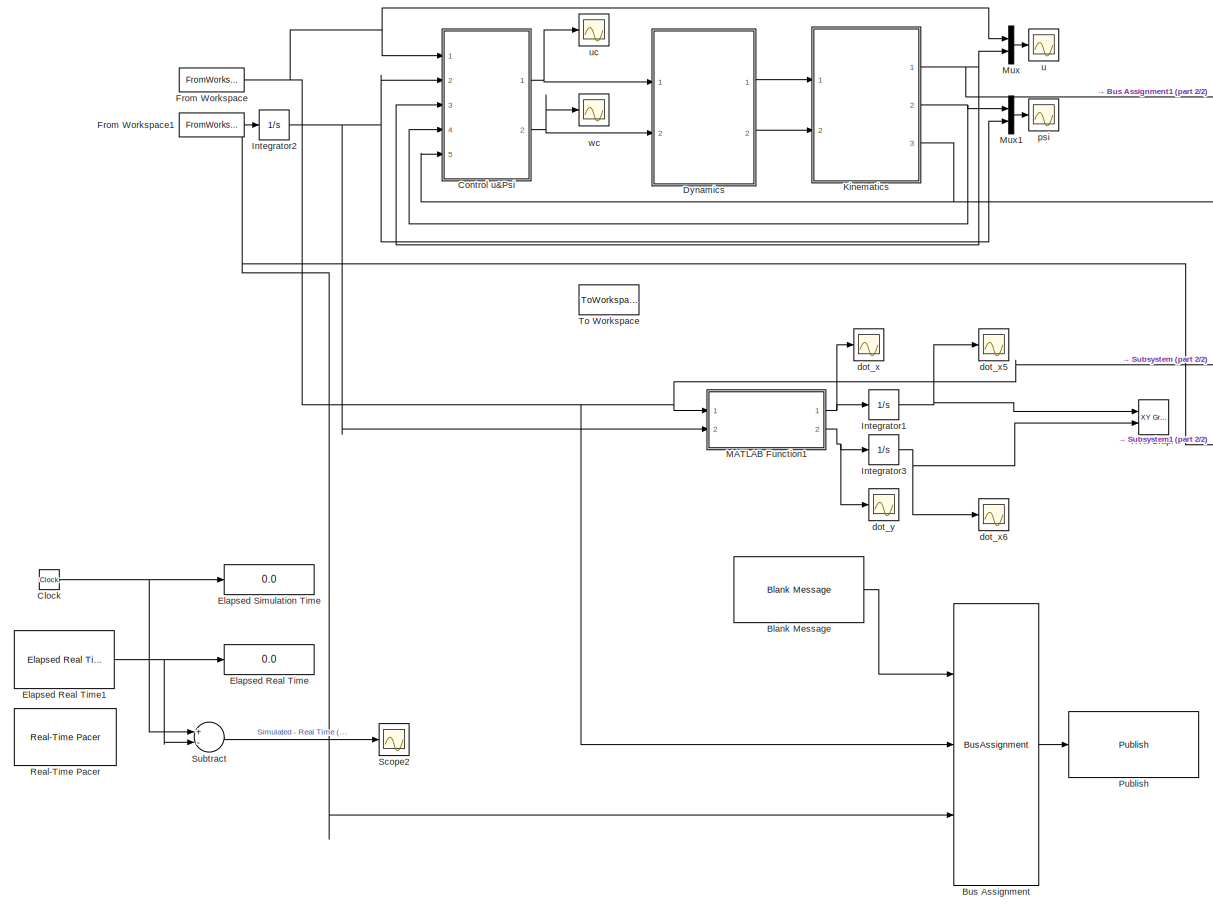
[diagram: root canvas - part 1/2, middle left region]
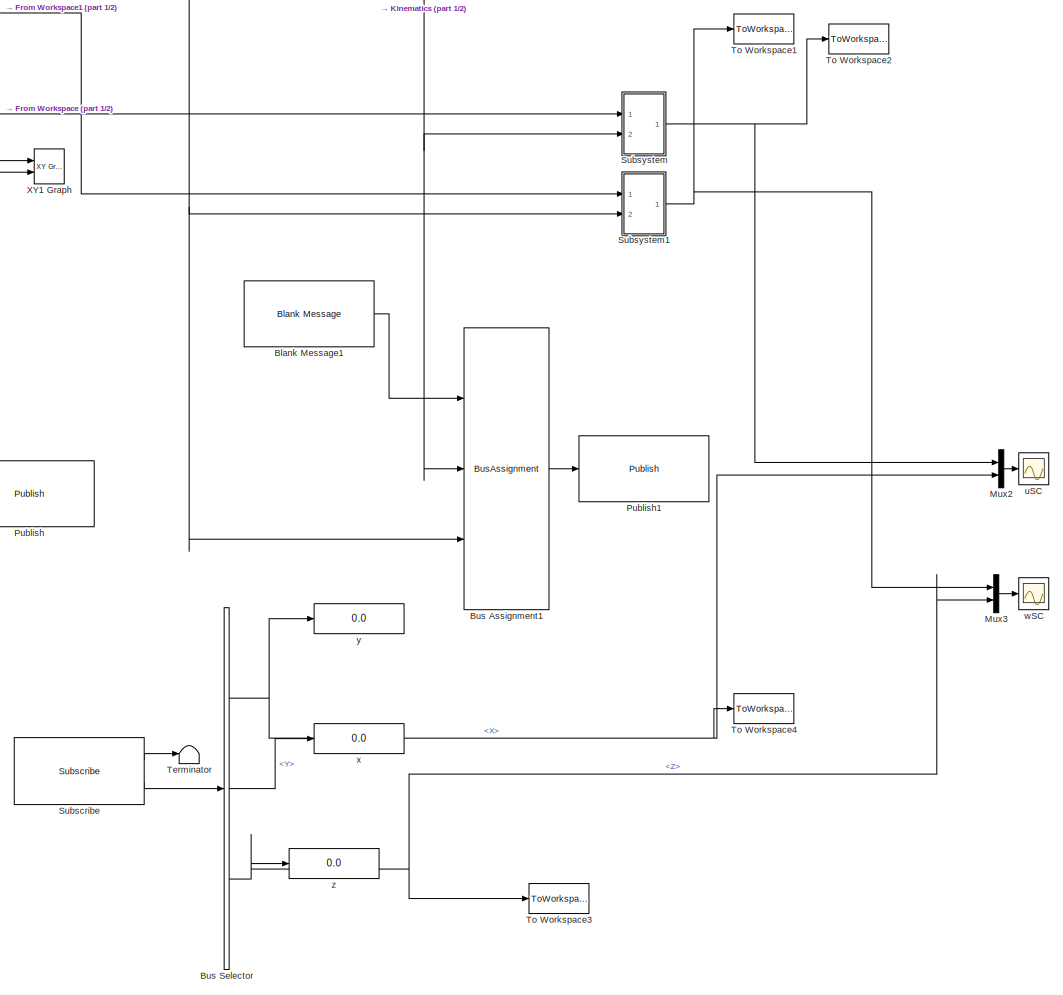
[diagram: root canvas - part 2/2, right side, full height]
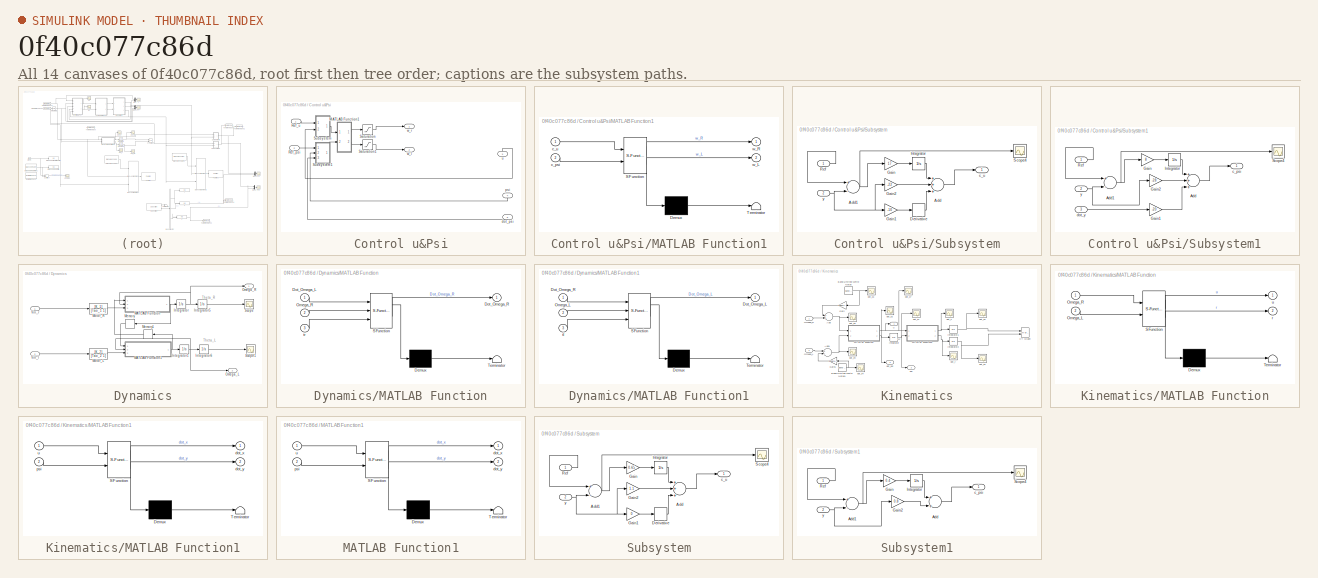
[diagram: thumbnail index - all 14 canvases of the model, root first then tree order]
MODEL slx_0f40c077c86d
KIND model
CONFIG AbsTol = auto
CONFIG EnableMultiTasking = off
CONFIG FixedStep = auto
CONFIG MaxStep = auto
CONFIG MinStep = auto
CONFIG RelTol = 1e-3
CONFIG SampleTimeConstraint = Unconstrained
CONFIG Solver = VariableStepAuto
CONFIG SolverName = VariableStepAuto
CONFIG StartTime = 0.0
CONFIG StopTime = 200
BLOCK [Reference] Blank Message  REF=robotlib/Blank Message
  Ports = [0, 1]
  SourceBlock = robotlib/Blank Message
  SourceProductBaseCode = RO
  SourceProductName = Robotics System Toolbox
  SourceType = ROS Blank Message
BLOCK [Reference] Blank Message1  REF=robotlib/Blank Message
  Ports = [0, 1]
  SourceBlock = robotlib/Blank Message
  SourceProductBaseCode = RO
  SourceProductName = Robotics System Toolbox
  SourceType = ROS Blank Message
BLOCK [BusAssignment] Bus Assignment
  AssignedSignals = Linear.X,Angular.Z
  Ports = [3, 1]
BLOCK [BusAssignment] Bus Assignment1
  AssignedSignals = X,Z
  Ports = [3, 1]
BLOCK [BusSelector] Bus Selector
  OutputAsBus = off
  OutputSignals = X,Y,Z
  Ports = [1, 3]
BLOCK [Clock] Clock
BLOCK [SubSystem] Control u&Psi
  Ports = [5, 2]
  RequestExecContextInheritance = off
BLOCK [SubSystem] Control u&Psi/MATLAB Function1
  ErrorFcn = Stateflow.Translate.translate
  PermitHierarchicalResolution = ExplicitOnly
  Ports = [2, 2]
  RequestExecContextInheritance = off
  SFBlockType = MATLAB Function
  TreatAsAtomicUnit = on
BLOCK [Demux] Control u&Psi/MATLAB Function1/ Demux 
  Outputs = 1
  Ports = [1, 1]
BLOCK [S-Function] Control u&Psi/MATLAB Function1/ SFunction 
  EnableBusSupport = on
  FunctionName = sf_sfun
  PortCounts = [2 3]
  Ports = [2, 3]
  SFcnIsStateOwnerBlock = off
  SFunctionDeploymentMode = off
  Tag = Stateflow S-Function Modelo_Ceres_RetroROS 5
BLOCK [Terminator] Control u&Psi/MATLAB Function1/ Terminator 
BLOCK [Inport] Control u&Psi/MATLAB Function1/c_psi
  IconDisplay = Port number
  Port = 2
BLOCK [Inport] Control u&Psi/MATLAB Function1/c_u
  IconDisplay = Port number
BLOCK [Outport] Control u&Psi/MATLAB Function1/w_L
  IconDisplay = Port number
  Port = 2
BLOCK [Outport] Control u&Psi/MATLAB Function1/w_R
  IconDisplay = Port number
BLOCK [Inport] Control u&Psi/Ref_psi
  IconDisplay = Port number
  Port = 2
BLOCK [Inport] Control u&Psi/Ref_u
  IconDisplay = Port number
BLOCK [Saturate] Control u&Psi/Saturation
  InputPortMap = u0
  LowerLimit = -10
  Ports = [1, 1]
  UpperLimit = 10
BLOCK [Saturate] Control u&Psi/Saturation1
  InputPortMap = u0
  LowerLimit = -10
  Ports = [1, 1]
  UpperLimit = 10
BLOCK [SubSystem] Control u&Psi/Subsystem
  Ports = [2, 1]
  RequestExecContextInheritance = off
BLOCK [Sum] Control u&Psi/Subsystem/Add
  InputSameDT = off
  Inputs = +++
  OutDataTypeStr = Inherit: Inherit via internal rule
  Ports = [3, 1]
  SaturateOnIntegerOverflow = off
BLOCK [Sum] Control u&Psi/Subsystem/Add1
  InputSameDT = off
  Inputs = +-
  OutDataTypeStr = Inherit: Inherit via internal rule
  Ports = [2, 1]
  SaturateOnIntegerOverflow = off
BLOCK [Derivative] Control u&Psi/Subsystem/Derivative
BLOCK [Gain] Control u&Psi/Subsystem/Gain
  Gain = 17
  OutDataTypeStr = Inherit: Inherit via internal rule
  ParamDataTypeStr = Inherit: Inherit via internal rule
  SaturateOnIntegerOverflow = off
BLOCK [Gain] Control u&Psi/Subsystem/Gain1
  Gain = -10
  OutDataTypeStr = Inherit: Inherit via internal rule
  ParamDataTypeStr = Inherit: Inherit via internal rule
  SaturateOnIntegerOverflow = off
BLOCK [Gain] Control u&Psi/Subsystem/Gain2
  Gain = -22
  OutDataTypeStr = Inherit: Inherit via internal rule
  ParamDataTypeStr = Inherit: Inherit via internal rule
  SaturateOnIntegerOverflow = off
BLOCK [Integrator] Control u&Psi/Subsystem/Integrator
  Ports = [1, 1]
BLOCK [Inport] Control u&Psi/Subsystem/Ref
  IconDisplay = Port number
BLOCK [Scope] Control u&Psi/Subsystem/Scope4
  Floating = off
  NumInputPorts = 1
  Ports = [1]
  ScopeSpecificationString = Simulink.scopes.TimeScopeBlockCfg('CurrentConfiguration', extmgr.ConfigurationSet(extmgr.Configuration('Core','General UI',true),extmgr.Configuration('Core','Source UI',true),extmgr.Configuration('Sources','WiredSimulink',true,'DataLoggingVariableName','ScopeData21'),extmgr.Configuration('Visuals','Time Domain',true,'SerializedDisplays',{struct('MinYLimReal','-0.13096','MaxYLimReal','0.56125','YLa...<+1408ch>
BLOCK [Outport] Control u&Psi/Subsystem/c_u
  IconDisplay = Port number
BLOCK [Inport] Control u&Psi/Subsystem/y
  IconDisplay = Port number
  Port = 2
BLOCK [SubSystem] Control u&Psi/Subsystem1
  Ports = [3, 1]
  RequestExecContextInheritance = off
BLOCK [Sum] Control u&Psi/Subsystem1/Add
  InputSameDT = off
  Inputs = +++
  OutDataTypeStr = Inherit: Inherit via internal rule
  Ports = [3, 1]
  SaturateOnIntegerOverflow = off
BLOCK [Sum] Control u&Psi/Subsystem1/Add1
  InputSameDT = off
  Inputs = +-
  OutDataTypeStr = Inherit: Inherit via internal rule
  Ports = [2, 1]
  SaturateOnIntegerOverflow = off
BLOCK [Gain] Control u&Psi/Subsystem1/Gain
  Gain = 8
  OutDataTypeStr = Inherit: Inherit via internal rule
  ParamDataTypeStr = Inherit: Inherit via internal rule
  SaturateOnIntegerOverflow = off
BLOCK [Gain] Control u&Psi/Subsystem1/Gain1
  Gain = -20
  OutDataTypeStr = Inherit: Inherit via internal rule
  ParamDataTypeStr = Inherit: Inherit via internal rule
  SaturateOnIntegerOverflow = off
BLOCK [Gain] Control u&Psi/Subsystem1/Gain2
  Gain = -28
  OutDataTypeStr = Inherit: Inherit via internal rule
  ParamDataTypeStr = Inherit: Inherit via internal rule
  SaturateOnIntegerOverflow = off
BLOCK [Integrator] Control u&Psi/Subsystem1/Integrator
  Ports = [1, 1]
BLOCK [Inport] Control u&Psi/Subsystem1/Ref
  IconDisplay = Port number
BLOCK [Scope] Control u&Psi/Subsystem1/Scope4
  Floating = off
  NumInputPorts = 1
  Ports = [1]
  ScopeSpecificationString = Simulink.scopes.TimeScopeBlockCfg('CurrentConfiguration', extmgr.ConfigurationSet(extmgr.Configuration('Core','General UI',true),extmgr.Configuration('Core','Source UI',true),extmgr.Configuration('Sources','WiredSimulink',true,'DataLoggingVariableName','ScopeData22'),extmgr.Configuration('Visuals','Time Domain',true,'SerializedDisplays',{struct('MinYLimReal','-0.4243','MaxYLimReal','0.41007','YLab...<+1404ch>
BLOCK [Outport] Control u&Psi/Subsystem1/c_psi
  IconDisplay = Port number
BLOCK [Inport] Control u&Psi/Subsystem1/dot_y
  IconDisplay = Port number
  Port = 3
BLOCK [Inport] Control u&Psi/Subsystem1/y
  IconDisplay = Port number
  Port = 2
BLOCK [Inport] Control u&Psi/dot_psi
  IconDisplay = Port number
  Port = 5
BLOCK [Inport] Control u&Psi/psi
  IconDisplay = Port number
  Port = 4
BLOCK [Inport] Control u&Psi/u
  IconDisplay = Port number
  Port = 3
BLOCK [Outport] Control u&Psi/w_l
  IconDisplay = Port number
  Port = 2
BLOCK [Outport] Control u&Psi/w_r
  IconDisplay = Port number
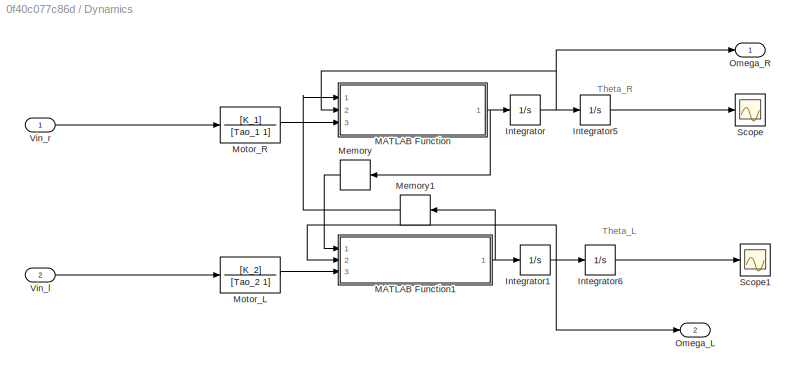
BLOCK [SubSystem] Dynamics
  Ports = [2, 2]
  RequestExecContextInheritance = off
BLOCK [Integrator] Dynamics/Integrator
  Ports = [1, 1]
BLOCK [Integrator] Dynamics/Integrator1
  Ports = [1, 1]
BLOCK [Integrator] Dynamics/Integrator5
  Ports = [1, 1]
BLOCK [Integrator] Dynamics/Integrator6
  Ports = [1, 1]
BLOCK [SubSystem] Dynamics/MATLAB Function
  ErrorFcn = Stateflow.Translate.translate
  PermitHierarchicalResolution = ExplicitOnly
  Ports = [3, 1]
  RequestExecContextInheritance = off
  SFBlockType = MATLAB Function
  TreatAsAtomicUnit = on
BLOCK [Demux] Dynamics/MATLAB Function/ Demux 
  Outputs = 1
  Ports = [1, 1]
BLOCK [S-Function] Dynamics/MATLAB Function/ SFunction 
  EnableBusSupport = on
  FunctionName = sf_sfun
  PortCounts = [3 2]
  Ports = [3, 2]
  SFcnIsStateOwnerBlock = off
  SFunctionDeploymentMode = off
  Tag = Stateflow S-Function Modelo_Ceres_RetroROS 2
BLOCK [Terminator] Dynamics/MATLAB Function/ Terminator 
BLOCK [Inport] Dynamics/MATLAB Function/Dot_Omega_L
  IconDisplay = Port number
BLOCK [Outport] Dynamics/MATLAB Function/Dot_Omega_R
  IconDisplay = Port number
BLOCK [Inport] Dynamics/MATLAB Function/Omega_R
  IconDisplay = Port number
  Port = 2
BLOCK [Inport] Dynamics/MATLAB Function/tr
  IconDisplay = Port number
  Port = 3
BLOCK [SubSystem] Dynamics/MATLAB Function1
  ErrorFcn = Stateflow.Translate.translate
  PermitHierarchicalResolution = ExplicitOnly
  Ports = [3, 1]
  RequestExecContextInheritance = off
  SFBlockType = MATLAB Function
  TreatAsAtomicUnit = on
BLOCK [Demux] Dynamics/MATLAB Function1/ Demux 
  Outputs = 1
  Ports = [1, 1]
BLOCK [S-Function] Dynamics/MATLAB Function1/ SFunction 
  EnableBusSupport = on
  FunctionName = sf_sfun
  PortCounts = [3 2]
  Ports = [3, 2]
  SFcnIsStateOwnerBlock = off
  SFunctionDeploymentMode = off
  Tag = Stateflow S-Function Modelo_Ceres_RetroROS 1
BLOCK [Terminator] Dynamics/MATLAB Function1/ Terminator 
BLOCK [Outport] Dynamics/MATLAB Function1/Dot_Omega_L
  IconDisplay = Port number
BLOCK [Inport] Dynamics/MATLAB Function1/Dot_Omega_R
  IconDisplay = Port number
BLOCK [Inport] Dynamics/MATLAB Function1/Omega_L
  IconDisplay = Port number
  Port = 2
BLOCK [Inport] Dynamics/MATLAB Function1/tl
  IconDisplay = Port number
  Port = 3
BLOCK [Memory] Dynamics/Memory
BLOCK [Memory] Dynamics/Memory1
BLOCK [TransferFcn] Dynamics/Motor_L
  Denominator = [Tao_2 1]
  Numerator = [K_2]
BLOCK [TransferFcn] Dynamics/Motor_R
  Denominator = [Tao_1 1]
  Numerator = [K_1]
BLOCK [Outport] Dynamics/Omega_L
  IconDisplay = Port number
  Port = 2
BLOCK [Outport] Dynamics/Omega_R
  IconDisplay = Port number
BLOCK [Scope] Dynamics/Scope
  Floating = off
  NumInputPorts = 1
  Ports = [1]
  ScopeSpecificationString = Simulink.scopes.TimeScopeBlockCfg('CurrentConfiguration', extmgr.ConfigurationSet(extmgr.Configuration('Core','General UI',true),extmgr.Configuration('Core','Source UI',true),extmgr.Configuration('Sources','WiredSimulink',true,'DataLoggingVariableName','ScopeData1'),extmgr.Configuration('Visuals','Time Domain',true,'SerializedDisplays',{struct('MinYLimReal','-4.38858','MaxYLimReal','39.49726','YLa...<+1417ch>
BLOCK [Scope] Dynamics/Scope1
  Floating = off
  NumInputPorts = 1
  Ports = [1]
  ScopeSpecificationString = Simulink.scopes.TimeScopeBlockCfg('CurrentConfiguration', extmgr.ConfigurationSet(extmgr.Configuration('Core','General UI',true),extmgr.Configuration('Core','Source UI',true),extmgr.Configuration('Sources','WiredSimulink',true,'DataLoggingVariableName','ScopeData2'),extmgr.Configuration('Visuals','Time Domain',true,'SerializedDisplays',{struct('MinYLimReal','-4.38858','MaxYLimReal','39.49726','YLa...<+1417ch>
BLOCK [Inport] Dynamics/Vin_l
  IconDisplay = Port number
  Port = 2
BLOCK [Inport] Dynamics/Vin_r
  IconDisplay = Port number
BLOCK [Display] Elapsed Real Time
  Decimation = 2
  Ports = [1]
BLOCK [Reference] Elapsed Real Time1  REF=realtime_pacer_lib/Elapsed Real Time
  Ports = [0, 1]
  SourceBlock = realtime_pacer_lib/Elapsed Real Time
  SourceType = RealTime_Elapsed
BLOCK [Display] Elapsed Simulation Time
  Decimation = 2
  Ports = [1]
BLOCK [FromWorkspace] From Workspace
  VariableName = uref3
  ZeroCross = on
BLOCK [FromWorkspace] From Workspace1
  VariableName = wref3
  ZeroCross = on
BLOCK [Integrator] Integrator1
  Ports = [1, 1]
BLOCK [Integrator] Integrator2
  Ports = [1, 1]
BLOCK [Integrator] Integrator3
  Ports = [1, 1]
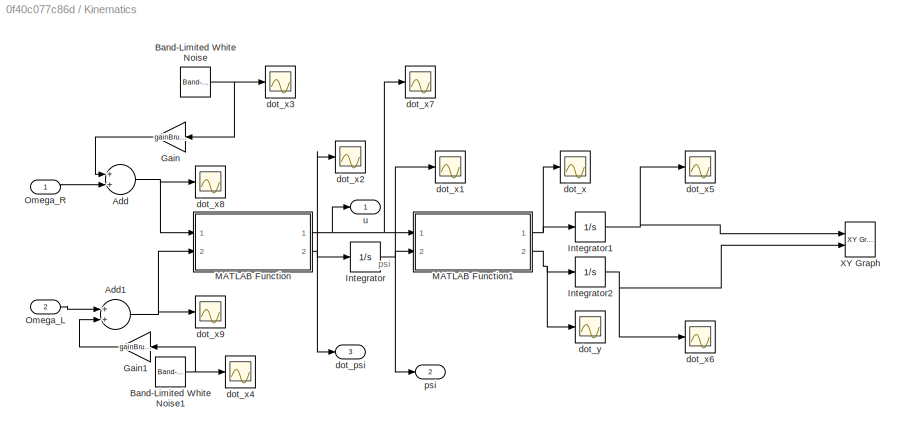
BLOCK [SubSystem] Kinematics
  Ports = [2, 3]
  RequestExecContextInheritance = off
BLOCK [Sum] Kinematics/Add
  InputSameDT = off
  OutDataTypeStr = Inherit: Inherit via internal rule
  Ports = [2, 1]
  SaturateOnIntegerOverflow = off
BLOCK [Sum] Kinematics/Add1
  InputSameDT = off
  OutDataTypeStr = Inherit: Inherit via internal rule
  Ports = [2, 1]
  SaturateOnIntegerOverflow = off
BLOCK [Reference] Kinematics/Band-Limited White Noise  REF=simulink/Sources/Band-Limited
White Noise
  Ports = [0, 1]
  SourceBlock = simulink/Sources/Band-Limited\nWhite Noise
  SourceProductBaseCode = SL
  SourceProductName = Simulink
  SourceType = Band-Limited White Noise.
BLOCK [Reference] Kinematics/Band-Limited White Noise1  REF=simulink/Sources/Band-Limited
White Noise
  Ports = [0, 1]
  SourceBlock = simulink/Sources/Band-Limited\nWhite Noise
  SourceProductBaseCode = SL
  SourceProductName = Simulink
  SourceType = Band-Limited White Noise.
BLOCK [Gain] Kinematics/Gain
  Gain = gainBruit
  OutDataTypeStr = Inherit: Inherit via internal rule
  ParamDataTypeStr = Inherit: Inherit via internal rule
  SaturateOnIntegerOverflow = off
BLOCK [Gain] Kinematics/Gain1
  Gain = gainBruit
  OutDataTypeStr = Inherit: Inherit via internal rule
  ParamDataTypeStr = Inherit: Inherit via internal rule
  SaturateOnIntegerOverflow = off
BLOCK [Integrator] Kinematics/Integrator
  Ports = [1, 1]
BLOCK [Integrator] Kinematics/Integrator1
  Ports = [1, 1]
BLOCK [Integrator] Kinematics/Integrator2
  Ports = [1, 1]
BLOCK [SubSystem] Kinematics/MATLAB Function
  ErrorFcn = Stateflow.Translate.translate
  PermitHierarchicalResolution = ExplicitOnly
  Ports = [2, 2]
  RequestExecContextInheritance = off
  SFBlockType = MATLAB Function
  TreatAsAtomicUnit = on
BLOCK [Demux] Kinematics/MATLAB Function/ Demux 
  Outputs = 1
  Ports = [1, 1]
BLOCK [S-Function] Kinematics/MATLAB Function/ SFunction 
  EnableBusSupport = on
  FunctionName = sf_sfun
  PortCounts = [2 3]
  Ports = [2, 3]
  SFcnIsStateOwnerBlock = off
  SFunctionDeploymentMode = off
  Tag = Stateflow S-Function Modelo_Ceres_RetroROS 3
BLOCK [Terminator] Kinematics/MATLAB Function/ Terminator 
BLOCK [Inport] Kinematics/MATLAB Function/Omega_L
  IconDisplay = Port number
  Port = 2
BLOCK [Inport] Kinematics/MATLAB Function/Omega_R
  IconDisplay = Port number
BLOCK [Outport] Kinematics/MATLAB Function/r
  IconDisplay = Port number
  Port = 2
BLOCK [Outport] Kinematics/MATLAB Function/u
  IconDisplay = Port number
BLOCK [SubSystem] Kinematics/MATLAB Function1
  ErrorFcn = Stateflow.Translate.translate
  PermitHierarchicalResolution = ExplicitOnly
  Ports = [2, 2]
  RequestExecContextInheritance = off
  SFBlockType = MATLAB Function
  TreatAsAtomicUnit = on
BLOCK [Demux] Kinematics/MATLAB Function1/ Demux 
  Outputs = 1
  Ports = [1, 1]
BLOCK [S-Function] Kinematics/MATLAB Function1/ SFunction 
  EnableBusSupport = on
  FunctionName = sf_sfun
  PortCounts = [2 3]
  Ports = [2, 3]
  SFcnIsStateOwnerBlock = off
  SFunctionDeploymentMode = off
  Tag = Stateflow S-Function Modelo_Ceres_RetroROS 4
BLOCK [Terminator] Kinematics/MATLAB Function1/ Terminator 
BLOCK [Outport] Kinematics/MATLAB Function1/dot_x
  IconDisplay = Port number
BLOCK [Outport] Kinematics/MATLAB Function1/dot_y
  IconDisplay = Port number
  Port = 2
BLOCK [Inport] Kinematics/MATLAB Function1/psi
  IconDisplay = Port number
  Port = 2
BLOCK [Inport] Kinematics/MATLAB Function1/u
  IconDisplay = Port number
BLOCK [Inport] Kinematics/Omega_L
  IconDisplay = Port number
  Port = 2
BLOCK [Inport] Kinematics/Omega_R
  IconDisplay = Port number
BLOCK [Reference] Kinematics/XY Graph  REF=simulink/Sinks/XY Graph
  Ports = [2]
  SourceBlock = simulink/Sinks/XY Graph
  SourceProductBaseCode = SL
  SourceProductName = Simulink
  SourceType = XY scope.
BLOCK [Outport] Kinematics/dot_psi
  IconDisplay = Port number
  Port = 3
BLOCK [Scope] Kinematics/dot_x
  Floating = off
  NumInputPorts = 1
  Ports = [1]
  ScopeSpecificationString = Simulink.scopes.TimeScopeBlockCfg('CurrentConfiguration', extmgr.ConfigurationSet(extmgr.Configuration('Core','General UI',true),extmgr.Configuration('Core','Source UI',true),extmgr.Configuration('Sources','WiredSimulink',true,'DataLoggingVariableName','ScopeData6'),extmgr.Configuration('Visuals','Time Domain',true,'SerializedDisplays',{struct('MinYLimReal','-0.2146','MaxYLimReal','0.27699','YLabe...<+1423ch>
BLOCK [Scope] Kinematics/dot_x1
  Floating = off
  NumInputPorts = 1
  Ports = [1]
  ScopeSpecificationString = Simulink.scopes.TimeScopeBlockCfg('CurrentConfiguration', extmgr.ConfigurationSet(extmgr.Configuration('Core','General UI',true),extmgr.Configuration('Core','Source UI',true),extmgr.Configuration('Sources','WiredSimulink',true,'DataLoggingVariableName','ScopeData8'),extmgr.Configuration('Visuals','Time Domain',true,'SerializedDisplays',{struct('MinYLimReal','-0.44126','MaxYLimReal','0.04903','YLab...<+1413ch>
BLOCK [Scope] Kinematics/dot_x2
  Floating = off
  NumInputPorts = 1
  Ports = [1]
  ScopeSpecificationString = Simulink.scopes.TimeScopeBlockCfg('CurrentConfiguration', extmgr.ConfigurationSet(extmgr.Configuration('Core','General UI',true),extmgr.Configuration('Core','Source UI',true),extmgr.Configuration('Sources','WiredSimulink',true,'DataLoggingVariableName','ScopeData9'),extmgr.Configuration('Visuals','Time Domain',true,'SerializedDisplays',{struct('MinYLimReal','-0.04886','MaxYLimReal','0.01092','YLab...<+1420ch>
BLOCK [Scope] Kinematics/dot_x3
  Floating = off
  NumInputPorts = 1
  Ports = [1]
  ScopeSpecificationString = Simulink.scopes.TimeScopeBlockCfg('CurrentConfiguration', extmgr.ConfigurationSet(extmgr.Configuration('Core','General UI',true),extmgr.Configuration('Core','Source UI',true),extmgr.Configuration('Sources','WiredSimulink',true,'DataLoggingVariableName','ScopeData10'),extmgr.Configuration('Visuals','Time Domain',true,'SerializedDisplays',{struct('MinYLimReal','-0.45488','MaxYLimReal','0.48875','YLa...<+1428ch>
BLOCK [Scope] Kinematics/dot_x4
  Floating = off
  NumInputPorts = 1
  Ports = [1]
  ScopeSpecificationString = Simulink.scopes.TimeScopeBlockCfg('CurrentConfiguration', extmgr.ConfigurationSet(extmgr.Configuration('Core','General UI',true),extmgr.Configuration('Core','Source UI',true),extmgr.Configuration('Sources','WiredSimulink',true,'DataLoggingVariableName','ScopeData11'),extmgr.Configuration('Visuals','Time Domain',true,'SerializedDisplays',{struct('MinYLimReal','-0.45488','MaxYLimReal','0.48875','YLa...<+1429ch>
BLOCK [Scope] Kinematics/dot_x5
  Floating = off
  NumInputPorts = 1
  Ports = [1]
  ScopeSpecificationString = Simulink.scopes.TimeScopeBlockCfg('CurrentConfiguration', extmgr.ConfigurationSet(extmgr.Configuration('Core','General UI',true),extmgr.Configuration('Core','Source UI',true),extmgr.Configuration('Sources','WiredSimulink',true,'DataLoggingVariableName','ScopeData12'),extmgr.Configuration('Visuals','Time Domain',true,'SerializedDisplays',{struct('MinYLimReal','-0.2146','MaxYLimReal','0.27699','YLab...<+1424ch>
BLOCK [Scope] Kinematics/dot_x6
  Floating = off
  NumInputPorts = 1
  Ports = [1]
  ScopeSpecificationString = Simulink.scopes.TimeScopeBlockCfg('CurrentConfiguration', extmgr.ConfigurationSet(extmgr.Configuration('Core','General UI',true),extmgr.Configuration('Core','Source UI',true),extmgr.Configuration('Sources','WiredSimulink',true,'DataLoggingVariableName','ScopeData13'),extmgr.Configuration('Visuals','Time Domain',true,'SerializedDisplays',{struct('MinYLimReal','-6.35828','MaxYLimReal','0.70648','YLa...<+1415ch>
BLOCK [Scope] Kinematics/dot_x7
  Floating = off
  NumInputPorts = 1
  Ports = [1]
  ScopeSpecificationString = Simulink.scopes.TimeScopeBlockCfg('CurrentConfiguration', extmgr.ConfigurationSet(extmgr.Configuration('Core','General UI',true),extmgr.Configuration('Core','Source UI',true),extmgr.Configuration('Sources','WiredSimulink',true,'DataLoggingVariableName','ScopeData14'),extmgr.Configuration('Visuals','Time Domain',true,'SerializedDisplays',{struct('MinYLimReal','-0.42961','MaxYLimReal','0.5541','YLab...<+1417ch>
BLOCK [Scope] Kinematics/dot_x8
  Floating = off
  NumInputPorts = 1
  Ports = [1]
  ScopeSpecificationString = Simulink.scopes.TimeScopeBlockCfg('CurrentConfiguration', extmgr.ConfigurationSet(extmgr.Configuration('Core','General UI',true),extmgr.Configuration('Core','Source UI',true),extmgr.Configuration('Sources','WiredSimulink',true,'DataLoggingVariableName','ScopeData19'),extmgr.Configuration('Visuals','Time Domain',true,'SerializedDisplays',{struct('MinYLimReal','-0.0618','MaxYLimReal','0.63595','YLab...<+1405ch>
BLOCK [Scope] Kinematics/dot_x9
  Floating = off
  NumInputPorts = 1
  Ports = [1]
  ScopeSpecificationString = Simulink.scopes.TimeScopeBlockCfg('CurrentConfiguration', extmgr.ConfigurationSet(extmgr.Configuration('Core','General UI',true),extmgr.Configuration('Core','Source UI',true),extmgr.Configuration('Sources','WiredSimulink',true,'DataLoggingVariableName','ScopeData20'),extmgr.Configuration('Visuals','Time Domain',true,'SerializedDisplays',{struct('MinYLimReal','-0.06175','MaxYLimReal','0.63543','YLa...<+1408ch>
BLOCK [Scope] Kinematics/dot_y
  Floating = off
  NumInputPorts = 1
  Ports = [1]
  ScopeSpecificationString = Simulink.scopes.TimeScopeBlockCfg('CurrentConfiguration', extmgr.ConfigurationSet(extmgr.Configuration('Core','General UI',true),extmgr.Configuration('Core','Source UI',true),extmgr.Configuration('Sources','WiredSimulink',true,'DataLoggingVariableName','ScopeData7'),extmgr.Configuration('Visuals','Time Domain',true,'SerializedDisplays',{struct('MinYLimReal','-0.00032','MaxYLimReal','0.00289','YLab...<+1425ch>
BLOCK [Outport] Kinematics/psi
  IconDisplay = Port number
  Port = 2
BLOCK [Outport] Kinematics/u
  IconDisplay = Port number
BLOCK [SubSystem] MATLAB Function1
  ErrorFcn = Stateflow.Translate.translate
  PermitHierarchicalResolution = ExplicitOnly
  Ports = [2, 2]
  RequestExecContextInheritance = off
  SFBlockType = MATLAB Function
  TreatAsAtomicUnit = on
BLOCK [Demux] MATLAB Function1/ Demux 
  Outputs = 1
  Ports = [1, 1]
BLOCK [S-Function] MATLAB Function1/ SFunction 
  EnableBusSupport = on
  FunctionName = sf_sfun
  PortCounts = [2 3]
  Ports = [2, 3]
  SFcnIsStateOwnerBlock = off
  SFunctionDeploymentMode = off
  Tag = Stateflow S-Function Modelo_Ceres_RetroROS 6
BLOCK [Terminator] MATLAB Function1/ Terminator 
BLOCK [Outport] MATLAB Function1/dot_x
  IconDisplay = Port number
BLOCK [Outport] MATLAB Function1/dot_y
  IconDisplay = Port number
  Port = 2
BLOCK [Inport] MATLAB Function1/psi
  IconDisplay = Port number
  Port = 2
BLOCK [Inport] MATLAB Function1/u
  IconDisplay = Port number
BLOCK [Mux] Mux
  DisplayOption = bar
  Inputs = 2
  Ports = [2, 1]
BLOCK [Mux] Mux1
  DisplayOption = bar
  Inputs = 2
  Ports = [2, 1]
BLOCK [Mux] Mux2
  DisplayOption = bar
  Inputs = 2
  Ports = [2, 1]
BLOCK [Mux] Mux3
  DisplayOption = bar
  Inputs = 2
  Ports = [2, 1]
BLOCK [Reference] Publish  REF=robotlib/Publish
  Ports = [1]
  SourceBlock = robotlib/Publish
  SourceProductBaseCode = RO
  SourceProductName = Robotics System Toolbox
  SourceType = ROS Publish
BLOCK [Reference] Publish1  REF=robotlib/Publish
  Ports = [1]
  SourceBlock = robotlib/Publish
  SourceProductBaseCode = RO
  SourceProductName = Robotics System Toolbox
  SourceType = ROS Publish
BLOCK [Reference] Real-Time Pacer  REF=realtime_pacer_lib/Real-Time Pacer
  Ports = []
  SourceBlock = realtime_pacer_lib/Real-Time Pacer
  SourceType = RealTime_Pacer
BLOCK [Scope] Scope2
  Floating = off
  NumInputPorts = 1
  Ports = [1]
  ScopeSpecificationString = Simulink.scopes.TimeScopeBlockCfg('CurrentConfiguration', extmgr.ConfigurationSet(extmgr.Configuration('Core','General UI',true),extmgr.Configuration('Core','Source UI',true),extmgr.Configuration('Sources','WiredSimulink',true,'DataLoggingSaveFormat','StructureWithTime','DataLoggingLimitDataPoints',true,'DataLoggingDecimation','1','DataLoggingDecimateData',true,'DataLoggingVariableName','ScopeData...<+1749ch>
BLOCK [Reference] Subscribe  REF=robotlib/Subscribe
  Ports = [0, 2]
  SourceBlock = robotlib/Subscribe
  SourceProductBaseCode = RO
  SourceProductName = Robotics System Toolbox
  SourceType = ROS Subscribe
BLOCK [SubSystem] Subsystem
  Ports = [2, 1]
  RequestExecContextInheritance = off
BLOCK [Sum] Subsystem/Add
  InputSameDT = off
  Inputs = +++
  OutDataTypeStr = Inherit: Inherit via internal rule
  Ports = [3, 1]
  SaturateOnIntegerOverflow = off
BLOCK [Sum] Subsystem/Add1
  InputSameDT = off
  Inputs = +-
  OutDataTypeStr = Inherit: Inherit via internal rule
  Ports = [2, 1]
  SaturateOnIntegerOverflow = off
BLOCK [Derivative] Subsystem/Derivative
BLOCK [Gain] Subsystem/Gain
  Gain = 0.65
  OutDataTypeStr = Inherit: Inherit via internal rule
  ParamDataTypeStr = Inherit: Inherit via internal rule
  SaturateOnIntegerOverflow = off
BLOCK [Gain] Subsystem/Gain1
  Gain = 0
  OutDataTypeStr = Inherit: Inherit via internal rule
  ParamDataTypeStr = Inherit: Inherit via internal rule
  SaturateOnIntegerOverflow = off
BLOCK [Gain] Subsystem/Gain2
  Gain = 1.1
  OutDataTypeStr = Inherit: Inherit via internal rule
  ParamDataTypeStr = Inherit: Inherit via internal rule
  SaturateOnIntegerOverflow = off
BLOCK [Integrator] Subsystem/Integrator
  Ports = [1, 1]
BLOCK [Inport] Subsystem/Ref
  IconDisplay = Port number
BLOCK [Scope] Subsystem/Scope4
  Floating = off
  NumInputPorts = 1
  Ports = [1]
  ScopeSpecificationString = Simulink.scopes.TimeScopeBlockCfg('CurrentConfiguration', extmgr.ConfigurationSet(extmgr.Configuration('Core','General UI',true),extmgr.Configuration('Core','Source UI',true),extmgr.Configuration('Sources','WiredSimulink',true,'DataLoggingVariableName','ScopeData21'),extmgr.Configuration('Visuals','Time Domain',true,'SerializedDisplays',{struct('MinYLimReal','-0.13096','MaxYLimReal','0.56125','YLa...<+1408ch>
BLOCK [Outport] Subsystem/c_u
  IconDisplay = Port number
BLOCK [Inport] Subsystem/y
  IconDisplay = Port number
  Port = 2
BLOCK [SubSystem] Subsystem1
  Ports = [2, 1]
  RequestExecContextInheritance = off
BLOCK [Sum] Subsystem1/Add
  InputSameDT = off
  OutDataTypeStr = Inherit: Inherit via internal rule
  Ports = [2, 1]
  SaturateOnIntegerOverflow = off
BLOCK [Sum] Subsystem1/Add1
  InputSameDT = off
  Inputs = +-
  OutDataTypeStr = Inherit: Inherit via internal rule
  Ports = [2, 1]
  SaturateOnIntegerOverflow = off
BLOCK [Gain] Subsystem1/Gain
  Gain = 0.4
  OutDataTypeStr = Inherit: Inherit via internal rule
  ParamDataTypeStr = Inherit: Inherit via internal rule
  SaturateOnIntegerOverflow = off
BLOCK [Gain] Subsystem1/Gain2
  Gain = 0.8
  OutDataTypeStr = Inherit: Inherit via internal rule
  ParamDataTypeStr = Inherit: Inherit via internal rule
  SaturateOnIntegerOverflow = off
BLOCK [Integrator] Subsystem1/Integrator
  Ports = [1, 1]
BLOCK [Inport] Subsystem1/Ref
  IconDisplay = Port number
BLOCK [Scope] Subsystem1/Scope4
  Floating = off
  NumInputPorts = 1
  Ports = [1]
  ScopeSpecificationString = Simulink.scopes.TimeScopeBlockCfg('CurrentConfiguration', extmgr.ConfigurationSet(extmgr.Configuration('Core','General UI',true),extmgr.Configuration('Core','Source UI',true),extmgr.Configuration('Sources','WiredSimulink',true,'DataLoggingVariableName','ScopeData22'),extmgr.Configuration('Visuals','Time Domain',true,'SerializedDisplays',{struct('MinYLimReal','-0.4243','MaxYLimReal','0.41007','YLab...<+1404ch>
BLOCK [Outport] Subsystem1/c_psi
  IconDisplay = Port number
BLOCK [Inport] Subsystem1/y
  IconDisplay = Port number
  Port = 2
BLOCK [Sum] Subtract
  InputSameDT = off
  Inputs = +-
  OutDataTypeStr = Inherit: Inherit via internal rule
  Ports = [2, 1]
  SaturateOnIntegerOverflow = off
BLOCK [Terminator] Terminator
BLOCK [ToWorkspace] To Workspace
  FixptAsFi = on
  MaxDataPoints = inf
  Ports = [1]
  SampleTime = -1
  Save2DSignal = 3-D array (concatenate along third dimension)
  SaveFormat = Timeseries
  VariableName = simout
BLOCK [ToWorkspace] To Workspace1
  FixptAsFi = on
  MaxDataPoints = inf
  Ports = [1]
  SampleTime = -1
  Save2DSignal = 3-D array (concatenate along third dimension)
  SaveFormat = Timeseries
  VariableName = csWsim1
BLOCK [ToWorkspace] To Workspace2
  FixptAsFi = on
  MaxDataPoints = inf
  Ports = [1]
  SampleTime = -1
  Save2DSignal = 3-D array (concatenate along third dimension)
  SaveFormat = Timeseries
  VariableName = csUsim1
BLOCK [ToWorkspace] To Workspace3
  FixptAsFi = on
  MaxDataPoints = inf
  Ports = [1]
  SampleTime = -1
  Save2DSignal = 3-D array (concatenate along third dimension)
  SaveFormat = Timeseries
  VariableName = csWros
BLOCK [ToWorkspace] To Workspace4
  FixptAsFi = on
  MaxDataPoints = inf
  Ports = [1]
  SampleTime = -1
  Save2DSignal = 3-D array (concatenate along third dimension)
  SaveFormat = Timeseries
  VariableName = csUros
BLOCK [Reference] XY1 Graph  REF=simulink/Sinks/XY Graph
  Ports = [2]
  SourceBlock = simulink/Sinks/XY Graph
  SourceProductBaseCode = SL
  SourceProductName = Simulink
  SourceType = XY scope.
BLOCK [Scope] dot_x
  Floating = off
  NumInputPorts = 1
  Ports = [1]
  ScopeSpecificationString = Simulink.scopes.TimeScopeBlockCfg('CurrentConfiguration', extmgr.ConfigurationSet(extmgr.Configuration('Core','General UI',true),extmgr.Configuration('Core','Source UI',true),extmgr.Configuration('Sources','WiredSimulink',true,'DataLoggingVariableName','ScopeData2'),extmgr.Configuration('Visuals','Time Domain',true,'SerializedDisplays',{struct('MinYLimReal','-0.2146','MaxYLimReal','0.27699','YLabe...<+1423ch>
BLOCK [Scope] dot_x5
  Floating = off
  NumInputPorts = 1
  Ports = [1]
  ScopeSpecificationString = Simulink.scopes.TimeScopeBlockCfg('CurrentConfiguration', extmgr.ConfigurationSet(extmgr.Configuration('Core','General UI',true),extmgr.Configuration('Core','Source UI',true),extmgr.Configuration('Sources','WiredSimulink',true,'DataLoggingVariableName','ScopeData3'),extmgr.Configuration('Visuals','Time Domain',true,'SerializedDisplays',{struct('MinYLimReal','-0.2146','MaxYLimReal','0.27699','YLabe...<+1423ch>
BLOCK [Scope] dot_x6
  Floating = off
  NumInputPorts = 1
  Ports = [1]
  ScopeSpecificationString = Simulink.scopes.TimeScopeBlockCfg('CurrentConfiguration', extmgr.ConfigurationSet(extmgr.Configuration('Core','General UI',true),extmgr.Configuration('Core','Source UI',true),extmgr.Configuration('Sources','WiredSimulink',true,'DataLoggingVariableName','ScopeData4'),extmgr.Configuration('Visuals','Time Domain',true,'SerializedDisplays',{struct('MinYLimReal','-0.2146','MaxYLimReal','0.27699','YLabe...<+1423ch>
BLOCK [Scope] dot_y
  Floating = off
  NumInputPorts = 1
  Ports = [1]
  ScopeSpecificationString = Simulink.scopes.TimeScopeBlockCfg('CurrentConfiguration', extmgr.ConfigurationSet(extmgr.Configuration('Core','General UI',true),extmgr.Configuration('Core','Source UI',true),extmgr.Configuration('Sources','WiredSimulink',true,'DataLoggingVariableName','ScopeData5'),extmgr.Configuration('Visuals','Time Domain',true,'SerializedDisplays',{struct('MinYLimReal','-0.00032','MaxYLimReal','0.00289','YLab...<+1425ch>
BLOCK [Scope] psi
  Floating = off
  NumInputPorts = 1
  Ports = [1]
  ScopeSpecificationString = Simulink.scopes.TimeScopeBlockCfg('CurrentConfiguration', extmgr.ConfigurationSet(extmgr.Configuration('Core','General UI',true),extmgr.Configuration('Core','Source UI',true),extmgr.Configuration('Sources','WiredSimulink',true,'DataLoggingVariableName','speed_psi','DataLogging',true,'DataLoggingSaveFormat','Array'),extmgr.Configuration('Visuals','Time Domain',true,'SerializedDisplays',{struct('Min...<+1508ch>
BLOCK [Scope] u
  Floating = off
  NumInputPorts = 1
  Ports = [1]
  ScopeSpecificationString = Simulink.scopes.TimeScopeBlockCfg('CurrentConfiguration', extmgr.ConfigurationSet(extmgr.Configuration('Core','General UI',true,'DisplayFullSourceName',true),extmgr.Configuration('Core','Source UI',true),extmgr.Configuration('Sources','WiredSimulink',true,'DataLoggingVariableName','speed_u','DataLogging',true,'DataLoggingSaveFormat','Array'),extmgr.Configuration('Visuals','Time Domain',true,'Seria...<+1539ch>
BLOCK [Scope] uSC
  Floating = off
  NumInputPorts = 1
  Ports = [1]
  ScopeSpecificationString = Simulink.scopes.TimeScopeBlockCfg('CurrentConfiguration', extmgr.ConfigurationSet(extmgr.Configuration('Core','General UI',true,'DisplayFullSourceName',true),extmgr.Configuration('Core','Source UI',true),extmgr.Configuration('Sources','WiredSimulink',true,'DataLoggingVariableName','ScopeData1','DataLogging',true,'DataLoggingSaveFormat','Array'),extmgr.Configuration('Visuals','Time Domain',true,'Se...<+1526ch>
BLOCK [Scope] uc
  Floating = off
  NumInputPorts = 1
  Ports = [1]
  ScopeSpecificationString = Simulink.scopes.TimeScopeBlockCfg('CurrentConfiguration', extmgr.ConfigurationSet(extmgr.Configuration('Core','General UI',true),extmgr.Configuration('Core','Source UI',true),extmgr.Configuration('Sources','WiredSimulink',true,'DataLoggingVariableName','control_r','DataLogging',true,'DataLoggingSaveFormat','Array'),extmgr.Configuration('Visuals','Time Domain',true,'SerializedDisplays',{struct('Min...<+1472ch>
BLOCK [Scope] wSC
  Floating = off
  NumInputPorts = 1
  Ports = [1]
  ScopeSpecificationString = Simulink.scopes.TimeScopeBlockCfg('CurrentConfiguration', extmgr.ConfigurationSet(extmgr.Configuration('Core','General UI',true,'DisplayFullSourceName',true),extmgr.Configuration('Core','Source UI',true),extmgr.Configuration('Sources','WiredSimulink',true,'DataLoggingVariableName','ScopeData2','DataLogging',true,'DataLoggingSaveFormat','Array'),extmgr.Configuration('Visuals','Time Domain',true,'Se...<+1542ch>
BLOCK [Scope] wc
  Floating = off
  NumInputPorts = 1
  Ports = [1]
  ScopeSpecificationString = Simulink.scopes.TimeScopeBlockCfg('CurrentConfiguration', extmgr.ConfigurationSet(extmgr.Configuration('Core','General UI',true),extmgr.Configuration('Core','Source UI',true),extmgr.Configuration('Sources','WiredSimulink',true,'DataLoggingVariableName','control_l','DataLogging',true,'DataLoggingSaveFormat','Array'),extmgr.Configuration('Visuals','Time Domain',true,'SerializedDisplays',{struct('Min...<+1428ch>
BLOCK [Display] x
  Decimation = 1
  Ports = [1]
BLOCK [Display] y
  Decimation = 1
  Ports = [1]
BLOCK [Display] z
  Decimation = 1
  Ports = [1]
ANNOTATION Dynamics: Theta_L
ANNOTATION Dynamics: Theta_R
ANNOTATION Kinematics: psi
LINE Blank Message1:1 -> Bus Assignment1:1
LINE Blank Message:1 -> Bus Assignment:1
LINE Bus Assignment1:1 -> Publish1:1
LINE Bus Assignment:1 -> Publish:1
NET Bus Selector:1 -> Mux2:2, To Workspace4:1, y:1
LINE Bus Selector:2 -> x:1
NET Bus Selector:3 -> Mux3:2, To Workspace3:1, z:1
NET Clock:1 -> Elapsed Simulation Time:1, Subtract:1
LINE Control u&Psi/MATLAB Function1:1 -> Control u&Psi/Saturation:1
LINE Control u&Psi/MATLAB Function1:2 -> Control u&Psi/Saturation1:1
LINE Control u&Psi/Ref_psi:1 -> Control u&Psi/Subsystem1:1
LINE Control u&Psi/Ref_u:1 -> Control u&Psi/Subsystem:1
LINE Control u&Psi/Saturation1:1 -> Control u&Psi/w_l:1
LINE Control u&Psi/Saturation:1 -> Control u&Psi/w_r:1
NET Control u&Psi/Subsystem/Add1:1 -> Control u&Psi/Subsystem/Gain:1, Control u&Psi/Subsystem/Scope4:1
LINE Control u&Psi/Subsystem/Add:1 -> Control u&Psi/Subsystem/c_u:1
LINE Control u&Psi/Subsystem/Derivative:1 -> Control u&Psi/Subsystem/Add:3
LINE Control u&Psi/Subsystem/Gain1:1 -> Control u&Psi/Subsystem/Derivative:1
LINE Control u&Psi/Subsystem/Gain2:1 -> Control u&Psi/Subsystem/Add:2
LINE Control u&Psi/Subsystem/Gain:1 -> Control u&Psi/Subsystem/Integrator:1
LINE Control u&Psi/Subsystem/Integrator:1 -> Control u&Psi/Subsystem/Add:1
LINE Control u&Psi/Subsystem/Ref:1 -> Control u&Psi/Subsystem/Add1:1
NET Control u&Psi/Subsystem/y:1 -> Control u&Psi/Subsystem/Add1:2, Control u&Psi/Subsystem/Gain1:1, Control u&Psi/Subsystem/Gain2:1
NET Control u&Psi/Subsystem1/Add1:1 -> Control u&Psi/Subsystem1/Gain:1, Control u&Psi/Subsystem1/Scope4:1
LINE Control u&Psi/Subsystem1/Add:1 -> Control u&Psi/Subsystem1/c_psi:1
LINE Control u&Psi/Subsystem1/Gain1:1 -> Control u&Psi/Subsystem1/Add:3
LINE Control u&Psi/Subsystem1/Gain2:1 -> Control u&Psi/Subsystem1/Add:2
LINE Control u&Psi/Subsystem1/Gain:1 -> Control u&Psi/Subsystem1/Integrator:1
LINE Control u&Psi/Subsystem1/Integrator:1 -> Control u&Psi/Subsystem1/Add:1
LINE Control u&Psi/Subsystem1/Ref:1 -> Control u&Psi/Subsystem1/Add1:1
LINE Control u&Psi/Subsystem1/dot_y:1 -> Control u&Psi/Subsystem1/Gain1:1
NET Control u&Psi/Subsystem1/y:1 -> Control u&Psi/Subsystem1/Add1:2, Control u&Psi/Subsystem1/Gain2:1
LINE Control u&Psi/Subsystem1:1 -> Control u&Psi/MATLAB Function1:2
LINE Control u&Psi/Subsystem:1 -> Control u&Psi/MATLAB Function1:1
LINE Control u&Psi/dot_psi:1 -> Control u&Psi/Subsystem1:3
LINE Control u&Psi/psi:1 -> Control u&Psi/Subsystem1:2
LINE Control u&Psi/u:1 -> Control u&Psi/Subsystem:2
NET Control u&Psi:1 -> Dynamics:1, uc:1
NET Control u&Psi:2 -> Dynamics:2, wc:1
NET Dynamics/Integrator1:1 -> Dynamics/Integrator6:1, Dynamics/MATLAB Function1:2, Dynamics/Omega_L:1
LINE Dynamics/Integrator5:1 -> Dynamics/Scope:1
LINE Dynamics/Integrator6:1 -> Dynamics/Scope1:1
NET Dynamics/Integrator:1 -> Dynamics/Integrator5:1, Dynamics/MATLAB Function:2, Dynamics/Omega_R:1
NET Dynamics/MATLAB Function1:1 -> Dynamics/Integrator1:1, Dynamics/Memory1:1
NET Dynamics/MATLAB Function:1 -> Dynamics/Integrator:1, Dynamics/Memory:1
LINE Dynamics/Memory1:1 -> Dynamics/MATLAB Function:1
LINE Dynamics/Memory:1 -> Dynamics/MATLAB Function1:1
LINE Dynamics/Motor_L:1 -> Dynamics/MATLAB Function1:3
LINE Dynamics/Motor_R:1 -> Dynamics/MATLAB Function:3
LINE Dynamics/Vin_l:1 -> Dynamics/Motor_L:1
LINE Dynamics/Vin_r:1 -> Dynamics/Motor_R:1
LINE Dynamics:1 -> Kinematics:1
LINE Dynamics:2 -> Kinematics:2
NET Elapsed Real Time1:1 -> Elapsed Real Time:1, Subtract:2
NET From Workspace1:1 -> Bus Assignment:3, Integrator2:1, Subsystem1:1
NET From Workspace:1 -> Bus Assignment:2, Control u&Psi:1, MATLAB Function1:1, Mux:1, Subsystem:1
NET Integrator1:1 -> XY1 Graph:1, dot_x5:1
NET Integrator2:1 -> Control u&Psi:2, MATLAB Function1:2, Mux1:2
NET Integrator3:1 -> XY1 Graph:2, dot_x6:1
NET Kinematics/Add1:1 -> Kinematics/MATLAB Function:2, Kinematics/dot_x9:1
NET Kinematics/Add:1 -> Kinematics/MATLAB Function:1, Kinematics/dot_x8:1
NET Kinematics/Band-Limited White Noise1:1 -> Kinematics/Gain1:1, Kinematics/dot_x4:1
NET Kinematics/Band-Limited White Noise:1 -> Kinematics/Gain:1, Kinematics/dot_x3:1
LINE Kinematics/Gain1:1 -> Kinematics/Add1:2
LINE Kinematics/Gain:1 -> Kinematics/Add:1
NET Kinematics/Integrator1:1 -> Kinematics/XY Graph:1, Kinematics/dot_x5:1
NET Kinematics/Integrator2:1 -> Kinematics/XY Graph:2, Kinematics/dot_x6:1
NET Kinematics/Integrator:1 -> Kinematics/MATLAB Function1:2, Kinematics/dot_x1:1, Kinematics/psi:1
NET Kinematics/MATLAB Function1:1 -> Kinematics/Integrator1:1, Kinematics/dot_x:1
NET Kinematics/MATLAB Function1:2 -> Kinematics/Integrator2:1, Kinematics/dot_y:1
NET Kinematics/MATLAB Function:1 -> Kinematics/MATLAB Function1:1, Kinematics/dot_x7:1, Kinematics/u:1
NET Kinematics/MATLAB Function:2 -> Kinematics/Integrator:1, Kinematics/dot_psi:1, Kinematics/dot_x2:1
LINE Kinematics/Omega_L:1 -> Kinematics/Add1:1
LINE Kinematics/Omega_R:1 -> Kinematics/Add:2
NET Kinematics:1 -> Bus Assignment1:2, Control u&Psi:3, Mux:2, Subsystem:2
NET Kinematics:2 -> Control u&Psi:4, Mux1:1
NET Kinematics:3 -> Bus Assignment1:3, Control u&Psi:5, Subsystem1:2
NET MATLAB Function1:1 -> Integrator1:1, dot_x:1
NET MATLAB Function1:2 -> Integrator3:1, dot_y:1
LINE Mux1:1 -> psi:1
LINE Mux2:1 -> uSC:1
LINE Mux3:1 -> wSC:1
LINE Mux:1 -> u:1
LINE Subscribe:1 -> Terminator:1
LINE Subscribe:2 -> Bus Selector:1
NET Subsystem/Add1:1 -> Subsystem/Gain:1, Subsystem/Scope4:1
LINE Subsystem/Add:1 -> Subsystem/c_u:1
LINE Subsystem/Derivative:1 -> Subsystem/Add:3
LINE Subsystem/Gain1:1 -> Subsystem/Derivative:1
LINE Subsystem/Gain2:1 -> Subsystem/Add:2
LINE Subsystem/Gain:1 -> Subsystem/Integrator:1
LINE Subsystem/Integrator:1 -> Subsystem/Add:1
LINE Subsystem/Ref:1 -> Subsystem/Add1:1
NET Subsystem/y:1 -> Subsystem/Add1:2, Subsystem/Gain1:1, Subsystem/Gain2:1
NET Subsystem1/Add1:1 -> Subsystem1/Gain:1, Subsystem1/Scope4:1
LINE Subsystem1/Add:1 -> Subsystem1/c_psi:1
LINE Subsystem1/Gain2:1 -> Subsystem1/Add:2
LINE Subsystem1/Gain:1 -> Subsystem1/Integrator:1
LINE Subsystem1/Integrator:1 -> Subsystem1/Add:1
LINE Subsystem1/Ref:1 -> Subsystem1/Add1:1
NET Subsystem1/y:1 -> Subsystem1/Add1:2, Subsystem1/Gain2:1
NET Subsystem1:1 -> Mux3:1, To Workspace1:1
NET Subsystem:1 -> Mux2:1, To Workspace2:1
LINE Subtract:1 -> Scope2:1
note: NET lines group one-source signal fan-out (src -> all destinations, sorted); 1:1 wires keep LINE
CHART Dynamics/MATLAB Function1 states=1 transitions=1
  STATE_LABEL 'eML_blk_kernel()'
  STATE_LABEL 'SCRIPT:\nfunction Dot_Omega_L  = fcn(Dot_Omega_R,Omega_L,tl)\nb=0.869;\t% Center mass to midpoint traction\na=2.255/2;\t%distance between front wheels\nm=602;\t\t%Total mass\nr=0.28;\t\t%Ratio front whell\nIq=588.1;\t%Inertia around Z axis\nIo=0.0006;\t%Inertia motor \nBe=0.02;\t%Friction coefficient motor\n\nD11=((m*r*r)/4)+((Iq+m*b*b)*r*r/(4*a*a)+Io);\nD22=D11;\nD12=(((m*r*r)/4)-((Iq+m*b*b)*r*r/(4*a*a)));\nD21=D12;\nB...<+144ch>'
CHART Dynamics/MATLAB Function states=1 transitions=1
  STATE_LABEL 'eML_blk_kernel()'
  STATE_LABEL 'SCRIPT:\nfunction Dot_Omega_R  = fcn(Dot_Omega_L,Omega_R,tr)\nb=0.869;\t% Center mass to midpoint traction\na=2.255/2;\t%distance between front wheels\nm=602;\t\t%Total mass\nr=0.28;\t\t%Ratio front whell\nIq=588.1;\t%Inertia around Z axis\nIo=0.0006;\t%Inertia motor \nBe=0.02;\t%Friction coefficient motor\n\nD11=((m*r*r)/4)+((Iq+m*b*b)*r*r/(4*a*a)+Io);\nD22=D11;\nD12=(((m*r*r)/4)-((Iq+m*b*b)*r*r/(4*a*a)));\nD21=D12;\nB...<+144ch>'
CHART Kinematics/MATLAB Function states=1 transitions=1
  STATE_LABEL 'eML_blk_kernel()'
  STATE_LABEL 'SCRIPT:\nfunction [u,r]  = fcn(Omega_R,Omega_L)\nb=0.869;\t% Center mass to midpoint traction\na=2.255/2;\t%distance between front wheels\nm=602;\t\t%Total mass\nr=0.28;\t\t%Ratio front whell\nIq=588.1;\t%Inertia around Z axis\nIo=0.0006;\t%Inertia motor \nBe=0.02;\t%Friction coefficient motor\n\n\nu = (1/2)*(Omega_R+Omega_L);\nr = (1/(2*a))*(Omega_R-Omega_L);\n'
CHART Kinematics/MATLAB Function1 states=1 transitions=1
  STATE_LABEL 'eML_blk_kernel()'
  STATE_LABEL 'SCRIPT:\nfunction [dot_x,dot_y]  = fcn(u,psi)\nb=0.869;\t% Center mass to midpoint traction\na=2.255/2;\t%distance between front wheels\nm=602;\t\t%Total mass\nr=0.28;\t\t%Ratio front whell\nIq=588.1;\t%Inertia around Z axis\nIo=0.0006;\t%Inertia motor \nBe=0.02;\t%Friction coefficient motor\n\n\ndot_x = (u/2)*(cos(psi));\ndot_y = (u/2)*(sin(psi));'
CHART Control u&Psi/MATLAB Function1 states=1 transitions=1
  STATE_LABEL 'eML_blk_kernel()'
  STATE_LABEL 'SCRIPT:\nfunction [w_R,w_L]  = fcn(c_u,c_psi)\nb=0.869;\t% Center mass to midpoint traction\na=2.255/2;\t%distance between front wheels\nm=602;\t\t%Total mass\nr=0.28;\t\t%Ratio front whell\nIq=588.1;\t%Inertia around Z axis\nIo=0.0006;\t%Inertia motor \nBe=0.02;\t%Friction coefficient motor\n\n\nw_R = (c_u+a*c_psi);\nw_L = (c_u-a*c_psi);'
CHART MATLAB Function1 states=1 transitions=1
  STATE_LABEL 'eML_blk_kernel()'
  STATE_LABEL 'SCRIPT:\nfunction [dot_x,dot_y]  = fcn(u,psi)\nb=0.869;\t% Center mass to midpoint traction\na=2.255/2;\t%distance between front wheels\nm=602;\t\t%Total mass\nr=0.28;\t\t%Ratio front whell\nIq=588.1;\t%Inertia around Z axis\nIo=0.0006;\t%Inertia motor \nBe=0.02;\t%Friction coefficient motor\n\n\ndot_x = (u/2)*(cos(psi));\ndot_y = (u/2)*(sin(psi));'
